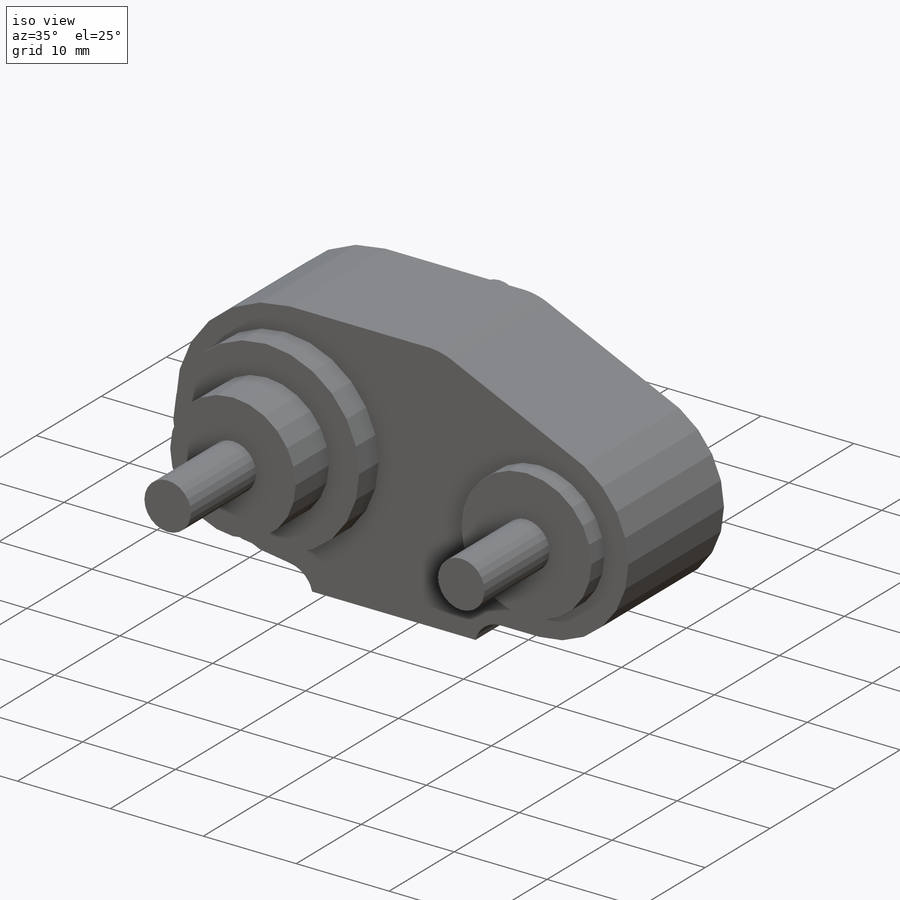
[diagram: iso view]
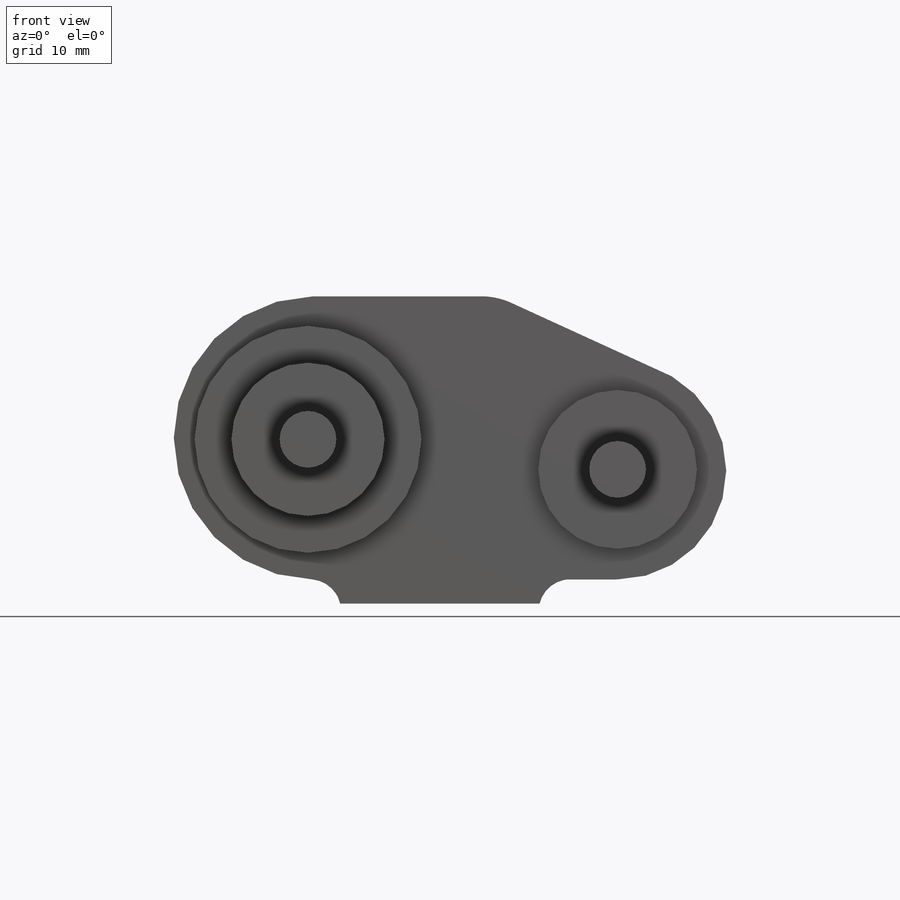
[diagram: front view]
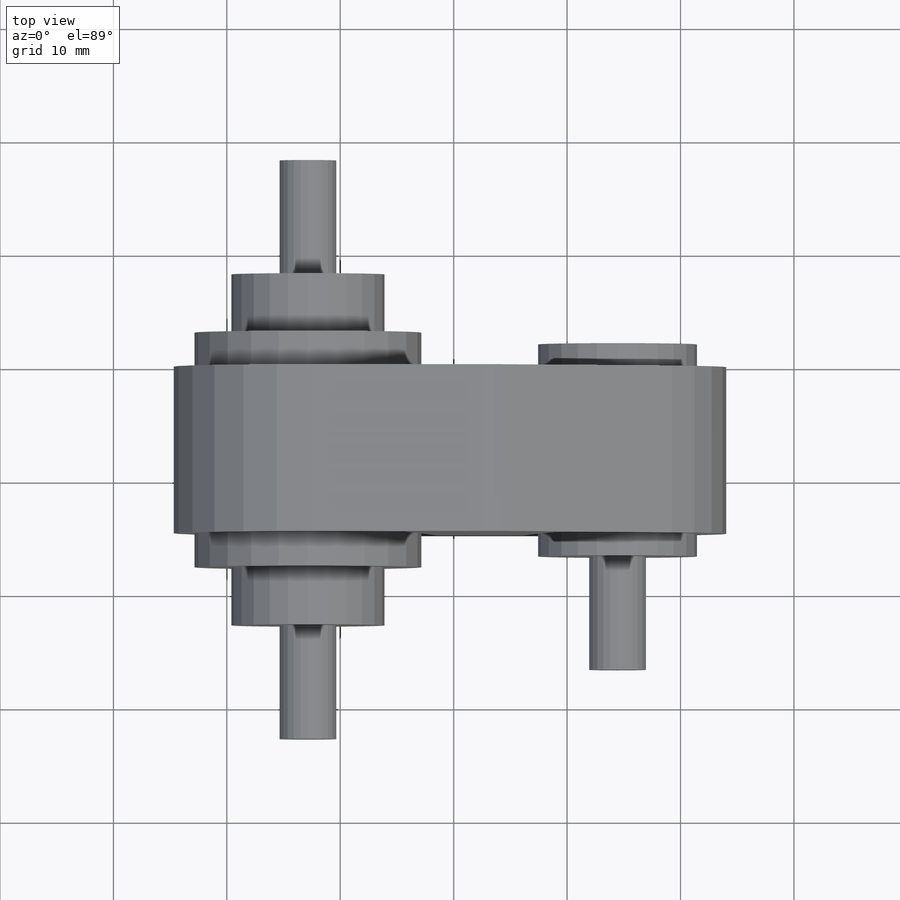
[diagram: top view]
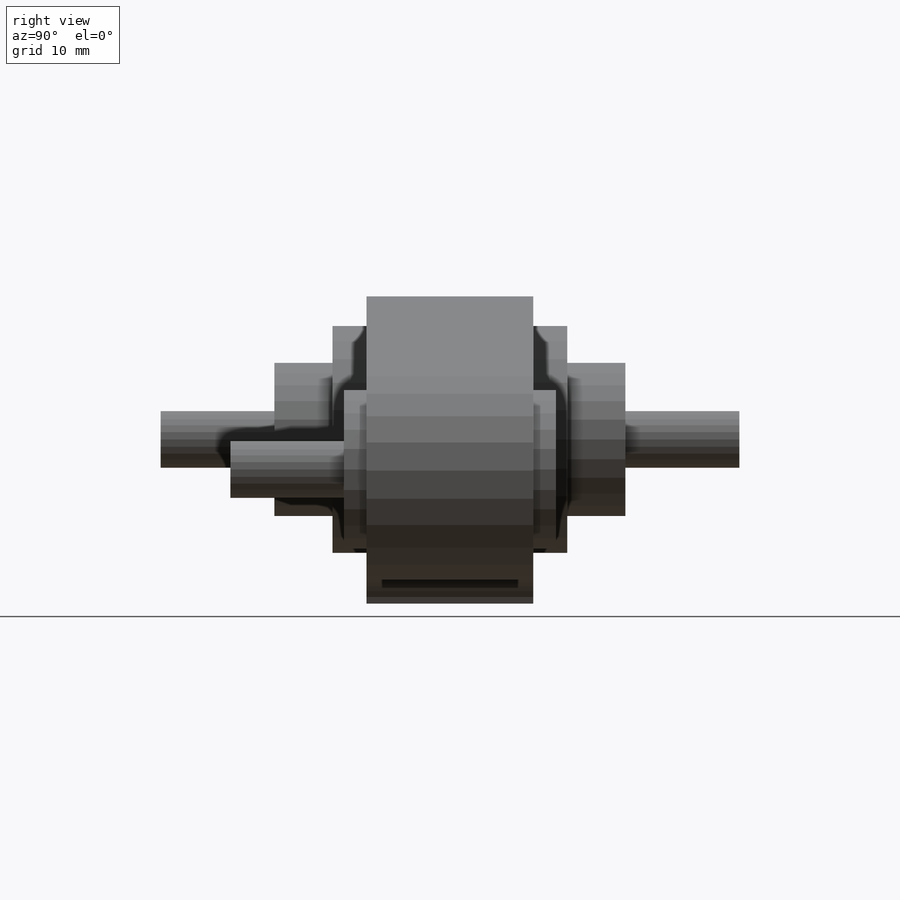
[diagram: right view]
SOLIDWORKS PART (.sldprt)
format: sldprt  version: not decoded by parser v0  size: 596,992 bytes
history: native  units: mm
features: sketch x12, extrude x10, cut_extrude x2, chamfer x2, material x1, plane x1 (+12 scaffold rows collapsed)
feature tree (40):
  scaffold x12  (default folders/planes/origin — collapsed)
  material  "Material <not specified>"
  plane  "Plane1"  Offset=14.7mm
  sketch  "Sketch1"
  extrude  "Boss-Extrude1"  Depth=14.7mm
  sketch  "Sketch2"
  extrude  "Boss-Extrude2"  Depth=2.000001mm
  sketch  "Sketch3"
  extrude  "Boss-Extrude3"  Depth=10mm
  sketch  "Sketch4"
  extrude  "Boss-Extrude4"  Depth=3.000001mm
  sketch  "Sketch5"
  extrude  "Boss-Extrude5"  Depth=5.119999mm
  sketch  "Sketch6"
  extrude  "Boss-Extrude6"  Depth=10.029999mm
  sketch  "Sketch7"
  extrude  "Boss-Extrude7"  Depth=2mm
  sketch  "Sketch8"
  extrude  "Boss-Extrude8"  Depth=3mm
  sketch  "Sketch9"
  extrude  "Boss-Extrude9"  Depth=5.13mm
  sketch  "Sketch10"
  extrude  "Boss-Extrude10"  Depth=10.05mm
  sketch  "Sketch11"
  cut_extrude  "Cut-Extrude1"  Depth=6mm
  sketch  "Sketch12"
  cut_extrude  "Cut-Extrude2"  Depth=6mm
  chamfer  "Chamfer1"  Distance=0.157017mm Angle=9.63813deg
  chamfer  "Chamfer2"  Distance=0.157642mm Angle=9.559098deg
decode coverage: 14 of 26 modeling features carry decoded parameters
note: suppression state not decoded; provenance and decode notes live in map.json
